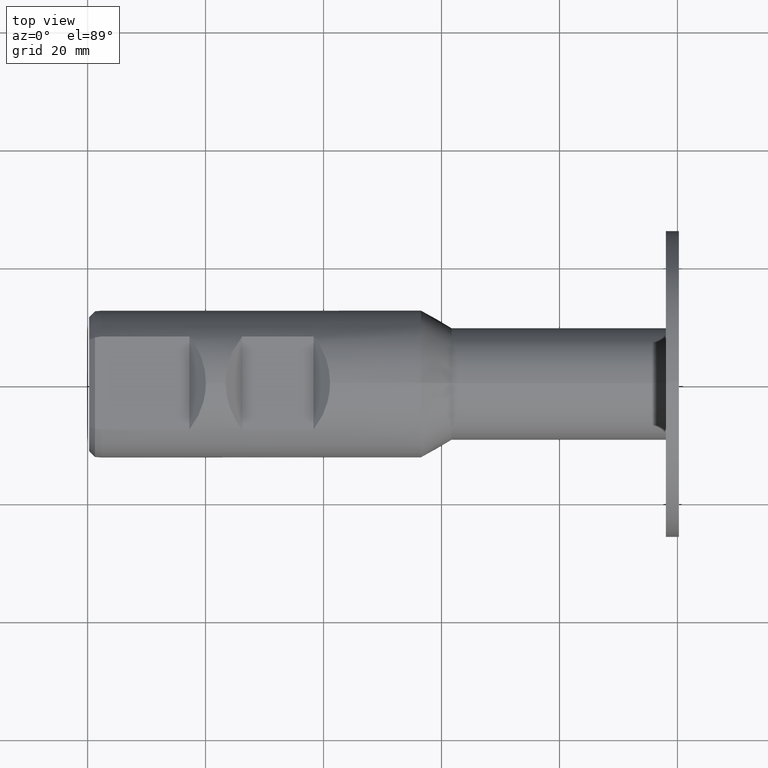
[diagram: clean part render]
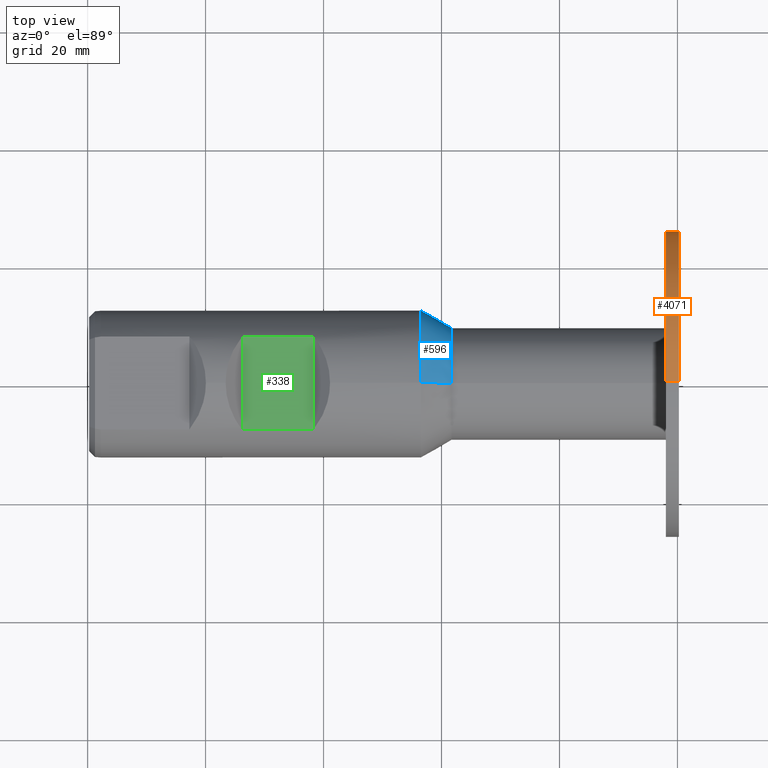
[diagram: same view with three faces highlighted in distinct colors, each labeled with its STEP entity id]
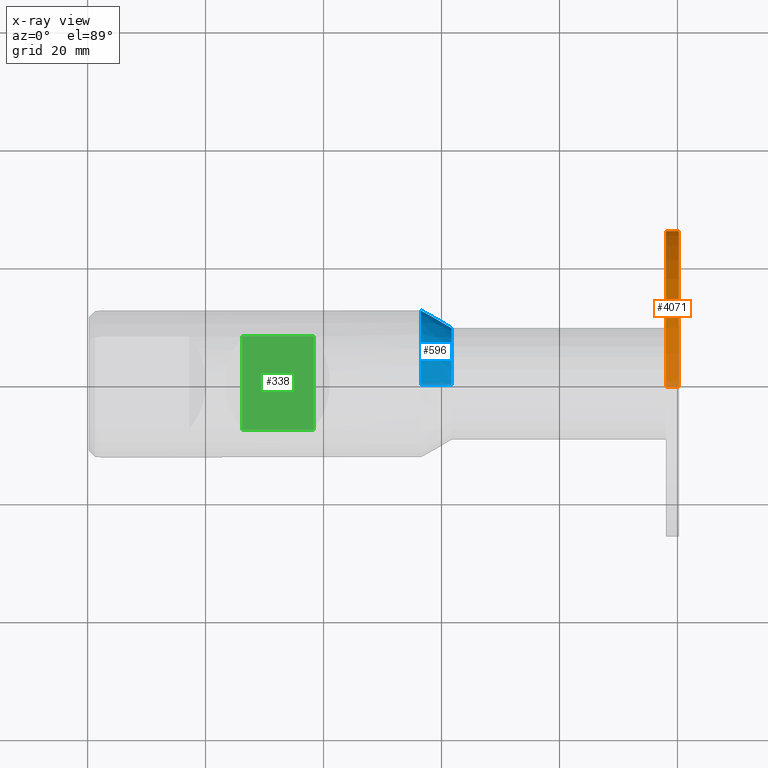
[diagram: x-ray of the same camera — body ghosted, the three highlighted faces saturated]
A machine part, top view with three faces highlighted in distinct colors.
The next image is the same camera in x-ray (body ghosted, the three faces saturated) — at least one of them is partly hidden behind the body in this view.
Their STEP definitions:

[orange] entity #4071 — the highlighted cylindrical surface (partial cylindrical patch) has radius 25.9862 mm, axis along (1, 0, 0).
#89 = VERTEX_POINT ( 'NONE', #3416 ) ;
#130 = CARTESIAN_POINT ( 'NONE',  ( 0.2502736700000091075, 0.0000000000000000000, -25.98623046108085433 ) ) ;
#193 = DIRECTION ( 'NONE',  ( 0.0000000000000000000, 0.0000000000000000000, -1.000000000000000000 ) ) ;
#307 = LINE ( 'NONE', #4365, #4019 ) ;
#650 = CIRCLE ( 'NONE', #928, 25.98623046108085433 ) ;
#746 = ORIENTED_EDGE ( 'NONE', *, *, #1941, .F. ) ;
#756 = CIRCLE ( 'NONE', #2684, 25.98623046108085433 ) ;
#795 = CARTESIAN_POINT ( 'NONE',  ( 0.2502736700000091075, 3.182395395606811769E-15, 25.98623046108085433 ) ) ;
#828 = FACE_OUTER_BOUND ( 'NONE', #1674, .T. ) ;
#928 = AXIS2_PLACEMENT_3D ( 'NONE', #3111, #1788, #2449 ) ;
#960 = EDGE_CURVE ( 'NONE', #89, #2511, #307, .T. ) ;
#1209 = CARTESIAN_POINT ( 'NONE',  ( 0.2502736700000091075, 0.0000000000000000000, 0.0000000000000000000 ) ) ;
#1258 = ORIENTED_EDGE ( 'NONE', *, *, #960, .F. ) ;
#1275 = DIRECTION ( 'NONE',  ( 1.000000000000000000, -0.0000000000000000000, -0.0000000000000000000 ) ) ;
#1280 = ORIENTED_EDGE ( 'NONE', *, *, #4204, .T. ) ;
#1387 = DIRECTION ( 'NONE',  ( 1.000000000000000000, -0.0000000000000000000, -0.0000000000000000000 ) ) ;
#1618 = DIRECTION ( 'NONE',  ( 1.000000000000000000, -0.0000000000000000000, -0.0000000000000000000 ) ) ;
#1674 = EDGE_LOOP ( 'NONE', ( #2003, #1280, #746, #1258 ) ) ;
#1788 = DIRECTION ( 'NONE',  ( 1.000000000000000000, -0.0000000000000000000, -0.0000000000000000000 ) ) ;
#1941 = EDGE_CURVE ( 'NONE', #2511, #4295, #756, .T. ) ;
#1993 = CARTESIAN_POINT ( 'NONE',  ( 10.42221673617035904, 0.0000000000000000000, 0.0000000000000000000 ) ) ;
#2003 = ORIENTED_EDGE ( 'NONE', *, *, #2413, .T. ) ;
#2021 = VECTOR ( 'NONE', #1387, 1000.000000000000000 ) ;
#2064 = CARTESIAN_POINT ( 'NONE',  ( 10.42221673617035904, 3.182395395606811769E-15, 25.98623046108085433 ) ) ;
#2210 = VERTEX_POINT ( 'NONE', #2714 ) ;
#2268 = CYLINDRICAL_SURFACE ( 'NONE', #3452, 25.98623046108085433 ) ;
#2315 = LINE ( 'NONE', #2064, #2021 ) ;
#2413 = EDGE_CURVE ( 'NONE', #89, #2210, #650, .T. ) ;
#2449 = DIRECTION ( 'NONE',  ( 0.0000000000000000000, 0.0000000000000000000, -1.000000000000000000 ) ) ;
#2511 = VERTEX_POINT ( 'NONE', #130 ) ;
#2684 = AXIS2_PLACEMENT_3D ( 'NONE', #1209, #4319, #193 ) ;
#2714 = CARTESIAN_POINT ( 'NONE',  ( -1.949726329999989627, 3.182395395606811769E-15, 25.98623046108085433 ) ) ;
#3111 = CARTESIAN_POINT ( 'NONE',  ( -1.949726329999989627, 0.0000000000000000000, 0.0000000000000000000 ) ) ;
#3416 = CARTESIAN_POINT ( 'NONE',  ( -1.949726329999989627, 0.0000000000000000000, -25.98623046108085433 ) ) ;
#3452 = AXIS2_PLACEMENT_3D ( 'NONE', #1993, #1618, #3699 ) ;
#3699 = DIRECTION ( 'NONE',  ( 0.0000000000000000000, 0.0000000000000000000, -1.000000000000000000 ) ) ;
#4019 = VECTOR ( 'NONE', #1275, 1000.000000000000000 ) ;
#4071 = ADVANCED_FACE ( 'NONE', ( #828 ), #2268, .T. ) ;
#4204 = EDGE_CURVE ( 'NONE', #2210, #4295, #2315, .T. ) ;
#4295 = VERTEX_POINT ( 'NONE', #795 ) ;
#4319 = DIRECTION ( 'NONE',  ( 1.000000000000000000, -0.0000000000000000000, -0.0000000000000000000 ) ) ;
#4365 = CARTESIAN_POINT ( 'NONE',  ( 10.42221673617035904, 0.0000000000000000000, -25.98623046108085433 ) ) ;

[blue] entity #596 — the highlighted conical surface has half-angle 30 deg.
#36 = CARTESIAN_POINT ( 'NONE',  ( -38.29376628615804634, 0.0000000000000000000, 9.499999999999994671 ) ) ;
#54 = DIRECTION ( 'NONE',  ( 1.000000000000000000, -0.0000000000000000000, -0.0000000000000000000 ) ) ;
#232 = CARTESIAN_POINT ( 'NONE',  ( -38.29376628615804634, 1.347111479062088207E-15, -9.499999999999994671 ) ) ;
#278 = CARTESIAN_POINT ( 'NONE',  ( -38.29376628615804634, 0.0000000000000000000, 9.499999999999994671 ) ) ;
#442 = ORIENTED_EDGE ( 'NONE', *, *, #2109, .F. ) ;
#596 = ADVANCED_FACE ( 'NONE', ( #1617 ), #1784, .T. ) ;
#597 = ORIENTED_EDGE ( 'NONE', *, *, #2412, .T. ) ;
#963 = DIRECTION ( 'NONE',  ( -0.8660254037844380415, 0.0000000000000000000, 0.5000000000000012212 ) ) ;
#1005 = CARTESIAN_POINT ( 'NONE',  ( -43.48991870886467836, 0.0000000000000000000, 12.50000000000000178 ) ) ;
#1151 = AXIS2_PLACEMENT_3D ( 'NONE', #3485, #54, #3502 ) ;
#1250 = CIRCLE ( 'NONE', #3101, 12.50000000000000000 ) ;
#1290 = VERTEX_POINT ( 'NONE', #3484 ) ;
#1617 = FACE_OUTER_BOUND ( 'NONE', #4054, .T. ) ;
#1621 = CARTESIAN_POINT ( 'NONE',  ( -38.29376628615804634, 0.0000000000000000000, 0.0000000000000000000 ) ) ;
#1784 = CONICAL_SURFACE ( 'NONE', #2289, 9.499999999999994671, 0.5235987755983002589 ) ;
#1801 = CARTESIAN_POINT ( 'NONE',  ( -38.29376628615804634, 1.163414459189984894E-15, -9.499999999999994671 ) ) ;
#2008 = DIRECTION ( 'NONE',  ( -1.000000000000000000, 0.0000000000000000000, 0.0000000000000000000 ) ) ;
#2025 = DIRECTION ( 'NONE',  ( 1.000000000000000000, -0.0000000000000000000, -0.0000000000000000000 ) ) ;
#2043 = DIRECTION ( 'NONE',  ( 0.0000000000000000000, 0.0000000000000000000, 1.000000000000000000 ) ) ;
#2056 = CARTESIAN_POINT ( 'NONE',  ( -43.48991870886467836, 0.0000000000000000000, 0.0000000000000000000 ) ) ;
#2109 = EDGE_CURVE ( 'NONE', #2260, #3526, #3883, .T. ) ;
#2260 = VERTEX_POINT ( 'NONE', #36 ) ;
#2289 = AXIS2_PLACEMENT_3D ( 'NONE', #1621, #2008, #3340 ) ;
#2349 = EDGE_CURVE ( 'NONE', #2665, #2260, #3464, .T. ) ;
#2395 = ORIENTED_EDGE ( 'NONE', *, *, #2349, .F. ) ;
#2412 = EDGE_CURVE ( 'NONE', #2665, #1290, #3195, .T. ) ;
#2665 = VERTEX_POINT ( 'NONE', #232 ) ;
#2783 = DIRECTION ( 'NONE',  ( -0.8660254037844380415, 6.123233995736782060E-17, -0.5000000000000012212 ) ) ;
#2904 = EDGE_CURVE ( 'NONE', #1290, #3526, #1250, .T. ) ;
#2920 = ORIENTED_EDGE ( 'NONE', *, *, #2904, .T. ) ;
#2961 = VECTOR ( 'NONE', #963, 999.9999999999998863 ) ;
#3101 = AXIS2_PLACEMENT_3D ( 'NONE', #2056, #2025, #2043 ) ;
#3195 = LINE ( 'NONE', #1801, #3406 ) ;
#3340 = DIRECTION ( 'NONE',  ( 0.0000000000000000000, 0.0000000000000000000, 1.000000000000000000 ) ) ;
#3406 = VECTOR ( 'NONE', #2783, 999.9999999999998863 ) ;
#3464 = CIRCLE ( 'NONE', #1151, 9.499999999999994671 ) ;
#3484 = CARTESIAN_POINT ( 'NONE',  ( -43.48991870886467836, 1.530808498934191916E-15, -12.50000000000000178 ) ) ;
#3485 = CARTESIAN_POINT ( 'NONE',  ( -38.29376628615804634, 0.0000000000000000000, 0.0000000000000000000 ) ) ;
#3502 = DIRECTION ( 'NONE',  ( 0.0000000000000000000, 0.0000000000000000000, -1.000000000000000000 ) ) ;
#3526 = VERTEX_POINT ( 'NONE', #1005 ) ;
#3883 = LINE ( 'NONE', #278, #2961 ) ;
#4054 = EDGE_LOOP ( 'NONE', ( #2395, #597, #2920, #442 ) ) ;

[green] entity #338 — the highlighted planar face has unit normal (-0, 0, -1).
#24 = LINE ( 'NONE', #3264, #2603 ) ;
#178 = VECTOR ( 'NONE', #360, 1000.000000000000000 ) ;
#281 = VERTEX_POINT ( 'NONE', #2862 ) ;
#338 = ADVANCED_FACE ( 'NONE', ( #2980 ), #3067, .F. ) ;
#360 = DIRECTION ( 'NONE',  ( -0.0000000000000000000, 1.000000000000000000, -0.0000000000000000000 ) ) ;
#672 = LINE ( 'NONE', #2480, #2330 ) ;
#863 = VERTEX_POINT ( 'NONE', #2768 ) ;
#971 = DIRECTION ( 'NONE',  ( -0.0000000000000000000, 1.000000000000000000, -0.0000000000000000000 ) ) ;
#1219 = CARTESIAN_POINT ( 'NONE',  ( -61.69972632999999718, -7.884161337770829725, 9.700000000000001066 ) ) ;
#1490 = DIRECTION ( 'NONE',  ( 1.000000000000000000, 0.0000000000000000000, 0.0000000000000000000 ) ) ;
#1979 = ORIENTED_EDGE ( 'NONE', *, *, #3173, .T. ) ;
#2190 = EDGE_CURVE ( 'NONE', #281, #4323, #3947, .T. ) ;
#2279 = ORIENTED_EDGE ( 'NONE', *, *, #4006, .T. ) ;
#2330 = VECTOR ( 'NONE', #1490, 1000.000000000000000 ) ;
#2350 = CARTESIAN_POINT ( 'NONE',  ( -73.79972632999999860, -12.50000000000000000, 9.700000000000002842 ) ) ;
#2480 = CARTESIAN_POINT ( 'NONE',  ( -29.74972632999999078, -7.884161337770829725, 9.699999999999995737 ) ) ;
#2496 = AXIS2_PLACEMENT_3D ( 'NONE', #3118, #2738, #3396 ) ;
#2556 = EDGE_LOOP ( 'NONE', ( #1979, #2279, #3230, #3728 ) ) ;
#2603 = VECTOR ( 'NONE', #971, 1000.000000000000000 ) ;
#2632 = DIRECTION ( 'NONE',  ( -1.000000000000000000, -0.0000000000000000000, -0.0000000000000000000 ) ) ;
#2644 = VERTEX_POINT ( 'NONE', #1219 ) ;
#2738 = DIRECTION ( 'NONE',  ( -1.433655765270088601E-16, 0.0000000000000000000, -1.000000000000000000 ) ) ;
#2768 = CARTESIAN_POINT ( 'NONE',  ( -61.69972632999999718, 7.884161337770794198, 9.700000000000001066 ) ) ;
#2788 = EDGE_CURVE ( 'NONE', #863, #4323, #2869, .T. ) ;
#2862 = CARTESIAN_POINT ( 'NONE',  ( -73.79972632999999860, -7.884161337770829725, 9.700000000000002842 ) ) ;
#2869 = LINE ( 'NONE', #2978, #4314 ) ;
#2978 = CARTESIAN_POINT ( 'NONE',  ( -29.74972632999999078, 7.884161337770804856, 9.699999999999995737 ) ) ;
#2980 = FACE_OUTER_BOUND ( 'NONE', #2556, .T. ) ;
#3067 = PLANE ( 'NONE',  #2496 ) ;
#3118 = CARTESIAN_POINT ( 'NONE',  ( -61.69972632999999718, -12.50000000000000000, 9.700000000000001066 ) ) ;
#3173 = EDGE_CURVE ( 'NONE', #281, #2644, #672, .T. ) ;
#3230 = ORIENTED_EDGE ( 'NONE', *, *, #2788, .T. ) ;
#3264 = CARTESIAN_POINT ( 'NONE',  ( -61.69972632999999718, -12.50000000000000000, 9.700000000000001066 ) ) ;
#3396 = DIRECTION ( 'NONE',  ( -1.000000000000000000, 0.0000000000000000000, 1.433655765270088601E-16 ) ) ;
#3728 = ORIENTED_EDGE ( 'NONE', *, *, #2190, .F. ) ;
#3947 = LINE ( 'NONE', #2350, #178 ) ;
#4006 = EDGE_CURVE ( 'NONE', #2644, #863, #24, .T. ) ;
#4189 = CARTESIAN_POINT ( 'NONE',  ( -73.79972632999999860, 7.884161337770804856, 9.700000000000002842 ) ) ;
#4314 = VECTOR ( 'NONE', #2632, 1000.000000000000000 ) ;
#4323 = VERTEX_POINT ( 'NONE', #4189 ) ;